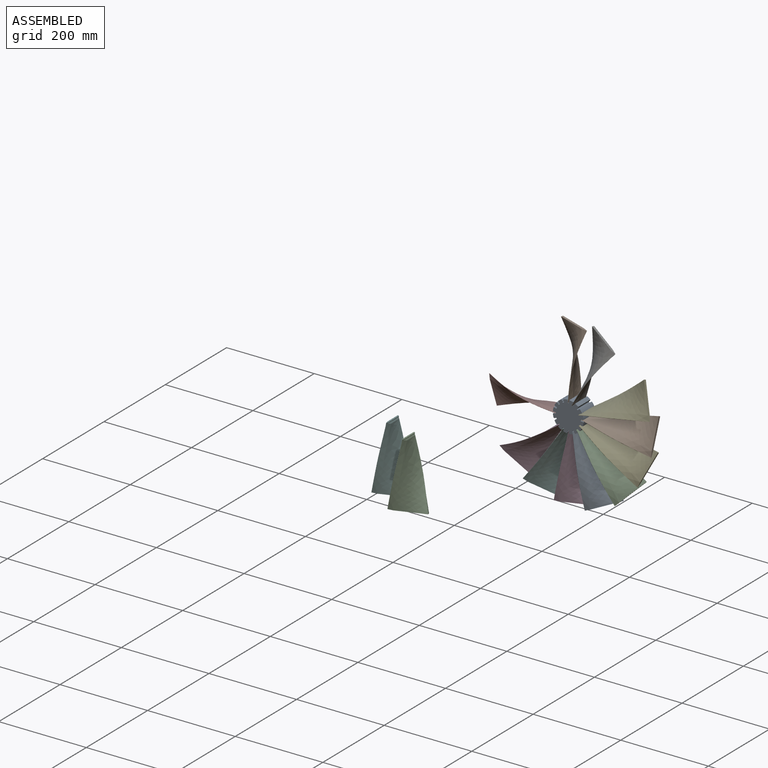
[diagram: assembled view]
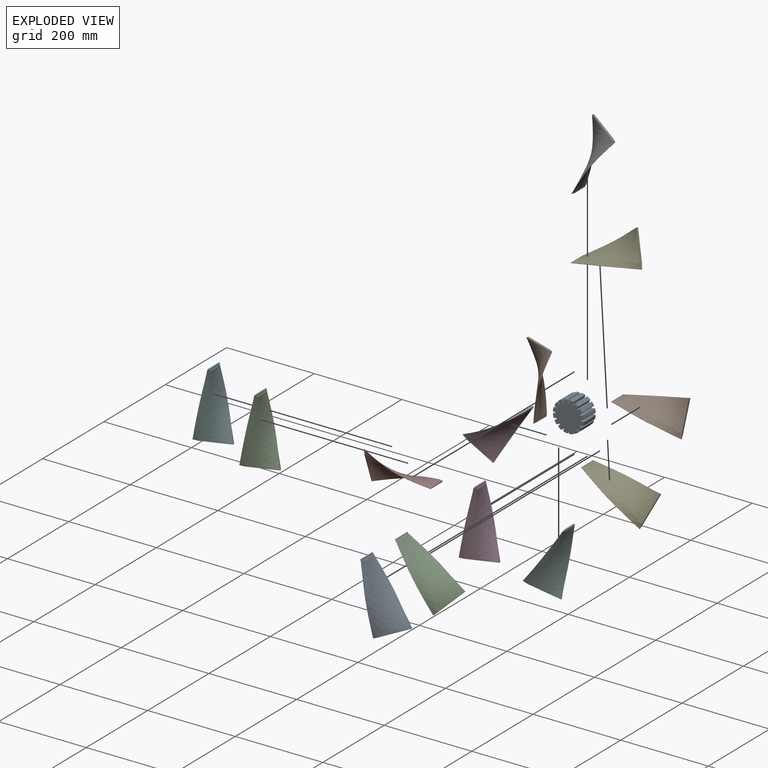
[diagram: exploded view]
GUIDED TOUR — MATED ASSEMBLY (Onshape document 3f12e4d53c6de2eebe91c551, AutoMate assembly 3f12e4d53c6de2eebe91c551_c72b980a857b75dac91aec3a_a3defe0d65092059f7c9bf6e_default)

This assembly has 14 components, labeled P0..P13 below (a component is one placed occurrence of a part; the same part can appear more than once), held together by 11 mates. A mate is a constraint between two components; its type names the relative motion it leaves free:
  FASTENED — locks the two components together rigidly (no relative motion).
Axis/direction vectors are unit vectors and 'through' points are millimeter coordinates, both in the assembly's world frame.

MATES
  1. FASTENED "Fastened 7": P6 <-> P0, direction (-0.999, 0.000, 0.044) through (10.98, 20.00, 31.40) mm
  2. FASTENED "Fastened 10": P4 <-> P0, direction (0.057, 0.000, -0.998) through (31.39, 20.00, 10.94) mm
  3. FASTENED "Fastened 8": P9 <-> P0, direction (0.000, -1.000, 0.000) through (0.00, 0.00, 30.12) mm
  4. FASTENED "Fastened 4": P11 <-> P0, direction (0.901, 0.000, -0.435) through (-22.10, 20.00, -24.83) mm
  5. FASTENED "Fastened 12": P7 <-> P0, direction (0.000, -1.000, 0.000) through (-30.13, 0.00, -0.05) mm
  6. FASTENED "Fastened 6": P12 <-> P0, direction (0.044, 0.000, 0.999) through (31.40, 20.00, -10.98) mm
  7. FASTENED "Fastened 9": P3 <-> P0, direction (0.000, -1.000, 0.000) through (0.00, 0.00, -30.12) mm
  8. FASTENED "Fastened 1": P8 <-> P0, direction (0.737, 0.000, 0.676) through (14.44, 20.00, -29.96) mm
  9. FASTENED "Fastened 3": P5 <-> P0, direction (0.999, 0.000, -0.044) through (-10.98, 20.00, -31.40) mm
  10. FASTENED "Fastened 2": P1 <-> P0, direction (0.000, -1.000, 0.000) through (30.13, 0.00, -0.05) mm
  11. FASTENED "Fastened 5": P2 <-> P0, direction (0.423, 0.000, 0.906) through (25.03, 20.00, -22.26) mm

ASSEMBLY ORDER
  1. P0 — the base component [order verified]
  2. P12 [order verified]
  3. P8 [order verified]
  4. P2 [order verified]
  5. P11 [order verified]
  6. P5 [order verified]
  7. P6 [order verified]
  8. P9 [order verified]
  9. P7 [order verified]
  10. P3 [order verified]
  11. P1 [order verified]
  12. P4 [order verified]
  13. P10 [order verified]
  14. P13 [order verified]
Order-tag legend:
  [order verified] — this step's position reverses a verified removal order: the component was checked to insert without passing through the ones already placed.

Of the 14 components, 1 carries the full construction recipe — the FeatureScript program that regenerates the part's solid from scratch; the rest are supplied as boundary geometry only.
Because this assembly has more than 12 components, the tour below covers the 12 most significant ones individually (every recipe-attached component first, then the largest by part volume), in assembly order; the remaining 2 are summarized together in a grouped section at the end.
Each toured component is shown spotlighted twice — in the assembled view, then in the exploded view, where a leader line traces a displaced component back to its assembled socket (saturated green if recipe-attached, orange if geometry-only; every other component desaturated gray) — followed by its recipe or geometry summary and the mates that hold it.
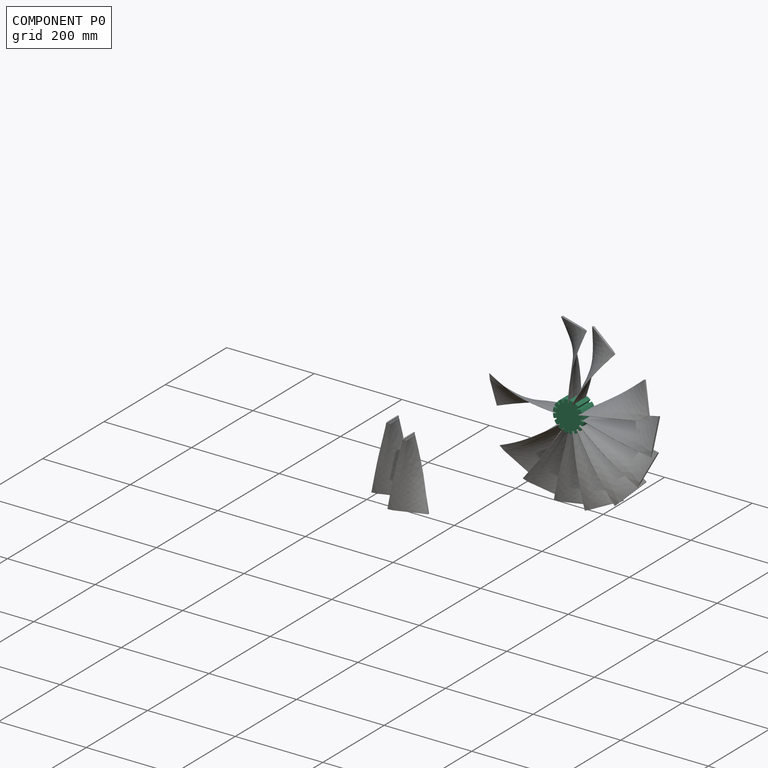
[diagram: component P0 — assembled]
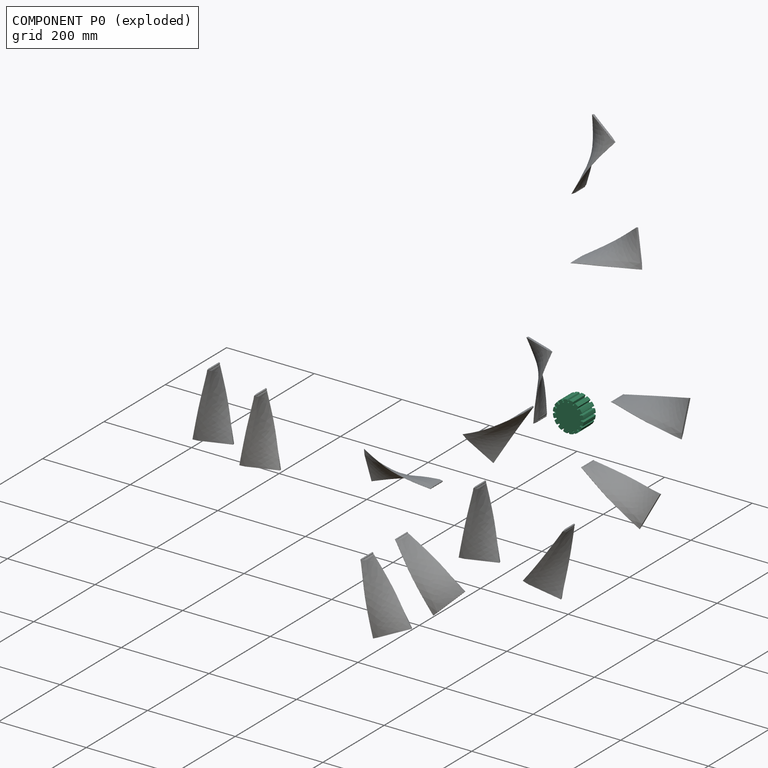
[diagram: component P0 — exploded]
COMPONENT P0 — recipe-attached (CADFS 00645231, mesh-verified: the recipe's output STEP matches this component's geometry to below the mesh-comparison resolution (tessellation chordal tolerance ~0.16 mm)).
Held by: FASTENED mate "Fastened 7" to P6; FASTENED mate "Fastened 10" to P4; FASTENED mate "Fastened 8" to P9; FASTENED mate "Fastened 4" to P11; FASTENED mate "Fastened 12" to P7; FASTENED mate "Fastened 6" to P12; FASTENED mate "Fastened 9" to P3; FASTENED mate "Fastened 1" to P8; FASTENED mate "Fastened 3" to P5; FASTENED mate "Fastened 2" to P1; FASTENED mate "Fastened 5" to P2.
Construction recipe (FeatureScript — the CAD program that rebuilds this solid; sketch coordinates are in the units given by the * unit suffixes, e.g. mm):

FeatureScript 1511;
import(path : "onshape/std/geometry.fs", version : "1511.0");
import(path : "onshape/std/common.fs", version : "1511.0");
const mm = millimeter;
const VERTEX = EntityType.VERTEX;
const EDGE = EntityType.EDGE;
const FACE = EntityType.FACE;
const BODY = EntityType.BODY;
function v(x, y){return vector(x, y);}
function OD(order){return orderDisambiguation(order);}
function OSD(set){return originalSetDisambiguation(set);}
function TD(topology){return topologyDisambiguation(topology);}
function TDD(query){return trueDependencyDisambiguation(query);}
function sQuery(a, b, c) {return sketchEntityQuery(a, b, c);}

annotation { "Feature Type Name" : "Feature", "Feature Type Description" : "" }
export const myFeature = defineFeature(function(context is Context, id is Id, definition is map)
    precondition{}
    {
        {
            var Q0;
            Q0=qCreatedBy(makeId("Front.planeOp"),FACE);
            var sketch = newSketch(context, id + "F0", { "sketchPlane" : qUnion([Q0])});
            skCircle(sketch, "E0", {"center": v(0, 0) * mm, "radius": 35 * mm});
            skLineSegment(sketch, "E1", {"start": v(0, -35) * mm, "end": v(0, 35) * mm, "construction": true});
            skLineSegment(sketch, "E2", {"start": v(35, 0) * mm, "end": v(-35, 0) * mm, "construction": true});
            skLineSegment(sketch, "E3", {"start": v(-24.75, -24.75) * mm, "end": v(24.75, 24.75) * mm, "construction": true});
            skLineSegment(sketch, "E4", {"start": v(-24.75, 24.75) * mm, "end": v(24.75, -24.75) * mm, "construction": true});
            skLineSegment(sketch, "E5.0", {"start": v(-2.5, 34.91) * mm, "end": v(2.5, 34.91) * mm});
            skLineSegment(sketch, "E6", {"start": v(-2.5, 34.91) * mm, "end": v(-1.26, 31.5) * mm});
            skLineSegment(sketch, "E7", {"start": v(2.5, 34.91) * mm, "end": v(1.3, 31.46) * mm});
            skLineSegment(sketch, "E8", {"start": v(-0.78, 30.21) * mm, "end": v(0.87, 30.21) * mm, "construction": true});
            skArc(sketch, "E9", {"start": v(-1.26, 31.5) * mm, "mid": v(-0.03, 28.25) * mm, "end": v(1.3, 31.46) * mm});
            skLineSegment(sketch, "E10", {"start": v(23.09, 26.3) * mm, "end": v(21.4, 23.13) * mm});
            skLineSegment(sketch, "E11", {"start": v(26.42, 22.96) * mm, "end": v(23.13, 21.37) * mm});
            skLineSegment(sketch, "E12", {"start": v(20.77, 21.96) * mm, "end": v(21.94, 20.8) * mm, "construction": true});
            skArc(sketch, "E13", {"start": v(21.4, 23.13) * mm, "mid": v(20, 20.02) * mm, "end": v(23.13, 21.37) * mm});
            skLineSegment(sketch, "E14", {"start": v(34.91, 2.44) * mm, "end": v(31.51, 1.2) * mm});
            skLineSegment(sketch, "E15", {"start": v(34.9, -2.55) * mm, "end": v(31.47, -1.35) * mm});
            skLineSegment(sketch, "E16", {"start": v(30.22, 0.73) * mm, "end": v(30.22, -0.92) * mm, "construction": true});
            skArc(sketch, "E17", {"start": v(31.51, 1.2) * mm, "mid": v(28.26, -0.02) * mm, "end": v(31.47, -1.35) * mm});
            skLineSegment(sketch, "E18", {"start": v(2.5, -34.91) * mm, "end": v(1.26, -31.5) * mm});
            skLineSegment(sketch, "E19", {"start": v(-2.5, -34.91) * mm, "end": v(-1.3, -31.46) * mm});
            skLineSegment(sketch, "E20", {"start": v(0.78, -30.21) * mm, "end": v(-0.87, -30.21) * mm, "construction": true});
            skArc(sketch, "E21", {"start": v(1.26, -31.5) * mm, "mid": v(0.03, -28.26) * mm, "end": v(-1.3, -31.46) * mm});
            skLineSegment(sketch, "E22", {"start": v(26.43, -22.94) * mm, "end": v(23.18, -21.4) * mm});
            skLineSegment(sketch, "E23", {"start": v(22.9, -26.48) * mm, "end": v(21.3, -23.19) * mm});
            skArc(sketch, "E24", {"start": v(23.18, -21.4) * mm, "mid": v(20, -19.94) * mm, "end": v(21.3, -23.19) * mm});
            skLineSegment(sketch, "E25.MirrorCS", {"start": v(-34.9, -2.55) * mm, "end": v(-31.47, -1.35) * mm});
            skArc(sketch, "E26.MirrorCS", {"start": v(-31.51, 1.2) * mm, "mid": v(-28.26, -0.02) * mm, "end": v(-31.47, -1.35) * mm});
            skLineSegment(sketch, "E27.MirrorCS", {"start": v(-34.91, 2.44) * mm, "end": v(-31.51, 1.2) * mm});
            skLineSegment(sketch, "E28.MirrorCS", {"start": v(-26.42, 22.96) * mm, "end": v(-23.13, 21.37) * mm});
            skArc(sketch, "E29.MirrorCS", {"start": v(-21.4, 23.13) * mm, "mid": v(-20, 20.02) * mm, "end": v(-23.13, 21.37) * mm});
            skLineSegment(sketch, "E30.MirrorCS", {"start": v(-23.09, 26.3) * mm, "end": v(-21.4, 23.13) * mm});
            skArc(sketch, "E31.MirrorCS", {"start": v(-23.18, -21.4) * mm, "mid": v(-20, -19.94) * mm, "end": v(-21.3, -23.19) * mm});
            skLineSegment(sketch, "E32.MirrorCS", {"start": v(-26.43, -22.94) * mm, "end": v(-23.18, -21.4) * mm});
            skLineSegment(sketch, "E33.MirrorCS", {"start": v(-22.9, -26.48) * mm, "end": v(-21.3, -23.19) * mm});
            skLineSegment(sketch, "E34.1.1", {"start": v(13.4, -32.34) * mm, "end": v(-13.4, 32.34) * mm, "construction": true});
            skLineSegment(sketch, "E34.1.2", {"start": v(-11.04, 33.21) * mm, "end": v(-10.84, 29.57) * mm});
            skArc(sketch, "E34.1.3", {"start": v(-13.22, 28.63) * mm, "mid": v(-10.84, 26.1) * mm, "end": v(-10.84, 29.57) * mm});
            skLineSegment(sketch, "E34.1.4", {"start": v(-15.66, 31.3) * mm, "end": v(-11.04, 33.21) * mm});
            skLineSegment(sketch, "E34.1.5", {"start": v(-15.66, 31.3) * mm, "end": v(-13.22, 28.63) * mm});
            skLineSegment(sketch, "E34.1.6", {"start": v(-12.29, 27.61) * mm, "end": v(-10.76, 28.24) * mm, "construction": true});
            skLineSegment(sketch, "E34.2.1", {"start": v(24.75, -24.75) * mm, "end": v(-24.75, 24.75) * mm, "construction": true});
            skLineSegment(sketch, "E34.2.2", {"start": v(-22.91, 26.46) * mm, "end": v(-21.33, 23.17) * mm});
            skArc(sketch, "E34.2.3", {"start": v(-23.17, 21.4) * mm, "mid": v(-20, 19.96) * mm, "end": v(-21.33, 23.17) * mm});
            skLineSegment(sketch, "E34.2.4", {"start": v(-26.45, 22.92) * mm, "end": v(-22.91, 26.46) * mm});
            skLineSegment(sketch, "E34.2.5", {"start": v(-26.45, 22.92) * mm, "end": v(-23.17, 21.4) * mm});
            skLineSegment(sketch, "E34.2.6", {"start": v(-21.92, 20.8) * mm, "end": v(-20.75, 21.98) * mm, "construction": true});
            skLineSegment(sketch, "E35.2.3.0", {"start": v(32.34, -13.4) * mm, "end": v(-32.34, 13.4) * mm, "construction": true});
            skLineSegment(sketch, "E35.5.3.0", {"start": v(-31.3, 15.68) * mm, "end": v(-28.57, 13.24) * mm});
            skArc(sketch, "E35.8.3.0", {"start": v(-29.59, 10.9) * mm, "mid": v(-26.12, 10.78) * mm, "end": v(-28.57, 13.24) * mm});
            skLineSegment(sketch, "E35.12.3.0", {"start": v(-33.2, 11.06) * mm, "end": v(-31.3, 15.68) * mm});
            skLineSegment(sketch, "E35.15.3.0", {"start": v(-33.2, 11.06) * mm, "end": v(-29.59, 10.9) * mm});
            skLineSegment(sketch, "E35.18.3.0", {"start": v(-28.21, 10.84) * mm, "end": v(-27.58, 12.36) * mm, "construction": true});
            skLineSegment(sketch, "E35.5.4.0", {"start": v(-34.91, 2.5) * mm, "end": v(-31.46, 1.3) * mm});
            skArc(sketch, "E35.8.4.0", {"start": v(-31.5, -1.26) * mm, "mid": v(-28.25, -0.03) * mm, "end": v(-31.46, 1.3) * mm});
            skLineSegment(sketch, "E35.12.4.0", {"start": v(-34.91, -2.5) * mm, "end": v(-34.91, 2.5) * mm});
            skLineSegment(sketch, "E35.15.4.0", {"start": v(-34.91, -2.5) * mm, "end": v(-31.5, -1.26) * mm});
            skLineSegment(sketch, "E35.18.4.0", {"start": v(-30.21, -0.78) * mm, "end": v(-30.21, 0.87) * mm, "construction": true});
            skLineSegment(sketch, "E35.2.5.0", {"start": v(32.34, 13.4) * mm, "end": v(-32.34, -13.4) * mm, "construction": true});
            skLineSegment(sketch, "E35.5.5.0", {"start": v(-33.21, -11.04) * mm, "end": v(-29.57, -10.84) * mm});
            skArc(sketch, "E35.8.5.0", {"start": v(-28.63, -13.22) * mm, "mid": v(-26.1, -10.84) * mm, "end": v(-29.57, -10.84) * mm});
            skLineSegment(sketch, "E35.12.5.0", {"start": v(-31.3, -15.66) * mm, "end": v(-33.21, -11.04) * mm});
            skLineSegment(sketch, "E35.15.5.0", {"start": v(-31.3, -15.66) * mm, "end": v(-28.63, -13.22) * mm});
            skLineSegment(sketch, "E35.18.5.0", {"start": v(-27.61, -12.29) * mm, "end": v(-28.24, -10.76) * mm, "construction": true});
            skLineSegment(sketch, "E35.2.6.0", {"start": v(24.75, 24.75) * mm, "end": v(-24.75, -24.75) * mm, "construction": true});
            skLineSegment(sketch, "E35.5.6.0", {"start": v(-26.46, -22.91) * mm, "end": v(-23.17, -21.33) * mm});
            skArc(sketch, "E35.8.6.0", {"start": v(-21.4, -23.17) * mm, "mid": v(-19.96, -20) * mm, "end": v(-23.17, -21.33) * mm});
            skLineSegment(sketch, "E35.12.6.0", {"start": v(-22.92, -26.45) * mm, "end": v(-26.46, -22.91) * mm});
            skLineSegment(sketch, "E35.15.6.0", {"start": v(-22.92, -26.45) * mm, "end": v(-21.4, -23.17) * mm});
            skLineSegment(sketch, "E35.18.6.0", {"start": v(-20.8, -21.92) * mm, "end": v(-21.98, -20.75) * mm, "construction": true});
            skLineSegment(sketch, "E35.2.7.0", {"start": v(13.4, 32.34) * mm, "end": v(-13.4, -32.34) * mm, "construction": true});
            skLineSegment(sketch, "E35.5.7.0", {"start": v(-15.68, -31.3) * mm, "end": v(-13.24, -28.57) * mm});
            skArc(sketch, "E35.8.7.0", {"start": v(-10.9, -29.59) * mm, "mid": v(-10.78, -26.12) * mm, "end": v(-13.24, -28.57) * mm});
            skLineSegment(sketch, "E35.12.7.0", {"start": v(-11.06, -33.2) * mm, "end": v(-15.68, -31.3) * mm});
            skLineSegment(sketch, "E35.15.7.0", {"start": v(-11.06, -33.2) * mm, "end": v(-10.9, -29.59) * mm});
            skLineSegment(sketch, "E35.18.7.0", {"start": v(-10.84, -28.21) * mm, "end": v(-12.36, -27.58) * mm, "construction": true});
            skLineSegment(sketch, "E36.2.8.0", {"start": v(0, 35) * mm, "end": v(0, -35) * mm, "construction": true});
            skArc(sketch, "E36.8.8.0", {"start": v(1.26, -31.5) * mm, "mid": v(0.03, -28.25) * mm, "end": v(-1.3, -31.46) * mm});
            skLineSegment(sketch, "E36.12.8.0", {"start": v(2.5, -34.91) * mm, "end": v(-2.5, -34.91) * mm});
            skLineSegment(sketch, "E36.2.9.0", {"start": v(-13.4, 32.34) * mm, "end": v(13.4, -32.34) * mm, "construction": true});
            skLineSegment(sketch, "E36.5.9.0", {"start": v(11.04, -33.21) * mm, "end": v(10.84, -29.57) * mm});
            skArc(sketch, "E36.8.9.0", {"start": v(13.22, -28.63) * mm, "mid": v(10.84, -26.1) * mm, "end": v(10.84, -29.57) * mm});
            skLineSegment(sketch, "E36.12.9.0", {"start": v(15.66, -31.3) * mm, "end": v(11.04, -33.21) * mm});
            skLineSegment(sketch, "E36.15.9.0", {"start": v(15.66, -31.3) * mm, "end": v(13.22, -28.63) * mm});
            skLineSegment(sketch, "E36.18.9.0", {"start": v(12.29, -27.61) * mm, "end": v(10.76, -28.24) * mm, "construction": true});
            skLineSegment(sketch, "E36.5.10.0", {"start": v(22.91, -26.46) * mm, "end": v(21.33, -23.17) * mm});
            skArc(sketch, "E36.8.10.0", {"start": v(23.17, -21.4) * mm, "mid": v(20, -19.96) * mm, "end": v(21.33, -23.17) * mm});
            skLineSegment(sketch, "E36.12.10.0", {"start": v(26.45, -22.92) * mm, "end": v(22.91, -26.46) * mm});
            skLineSegment(sketch, "E36.15.10.0", {"start": v(26.45, -22.92) * mm, "end": v(23.17, -21.4) * mm});
            skLineSegment(sketch, "E36.18.10.0", {"start": v(21.92, -20.8) * mm, "end": v(20.75, -21.98) * mm, "construction": true});
            skLineSegment(sketch, "E36.2.11.0", {"start": v(-32.34, 13.4) * mm, "end": v(32.34, -13.4) * mm, "construction": true});
            skLineSegment(sketch, "E36.5.11.0", {"start": v(31.3, -15.68) * mm, "end": v(28.57, -13.24) * mm});
            skArc(sketch, "E36.8.11.0", {"start": v(29.59, -10.9) * mm, "mid": v(26.12, -10.78) * mm, "end": v(28.57, -13.24) * mm});
            skLineSegment(sketch, "E36.12.11.0", {"start": v(33.2, -11.06) * mm, "end": v(31.3, -15.68) * mm});
            skLineSegment(sketch, "E36.15.11.0", {"start": v(33.2, -11.06) * mm, "end": v(29.59, -10.9) * mm});
            skLineSegment(sketch, "E36.18.11.0", {"start": v(28.21, -10.84) * mm, "end": v(27.58, -12.36) * mm, "construction": true});
            skLineSegment(sketch, "E37.2.12.0", {"start": v(-35, 0) * mm, "end": v(35, 0) * mm, "construction": true});
            skLineSegment(sketch, "E37.5.12.0", {"start": v(34.91, -2.5) * mm, "end": v(31.46, -1.3) * mm});
            skArc(sketch, "E37.8.12.0", {"start": v(31.5, 1.26) * mm, "mid": v(28.25, 0.03) * mm, "end": v(31.46, -1.3) * mm});
            skLineSegment(sketch, "E37.12.12.0", {"start": v(34.91, 2.5) * mm, "end": v(34.91, -2.5) * mm});
            skLineSegment(sketch, "E37.15.12.0", {"start": v(34.91, 2.5) * mm, "end": v(31.5, 1.26) * mm});
            skLineSegment(sketch, "E37.18.12.0", {"start": v(30.21, 0.78) * mm, "end": v(30.21, -0.87) * mm, "construction": true});
            skLineSegment(sketch, "E37.2.13.0", {"start": v(-32.34, -13.4) * mm, "end": v(32.34, 13.4) * mm, "construction": true});
            skLineSegment(sketch, "E37.5.13.0", {"start": v(33.21, 11.04) * mm, "end": v(29.57, 10.84) * mm});
            skArc(sketch, "E37.8.13.0", {"start": v(28.63, 13.22) * mm, "mid": v(26.1, 10.84) * mm, "end": v(29.57, 10.84) * mm});
            skLineSegment(sketch, "E37.12.13.0", {"start": v(31.3, 15.66) * mm, "end": v(33.21, 11.04) * mm});
            skLineSegment(sketch, "E37.15.13.0", {"start": v(31.3, 15.66) * mm, "end": v(28.63, 13.22) * mm});
            skLineSegment(sketch, "E37.18.13.0", {"start": v(27.61, 12.29) * mm, "end": v(28.24, 10.76) * mm, "construction": true});
            skLineSegment(sketch, "E38.5.14.0", {"start": v(26.46, 22.91) * mm, "end": v(23.17, 21.33) * mm});
            skArc(sketch, "E38.8.14.0", {"start": v(21.4, 23.17) * mm, "mid": v(19.96, 20) * mm, "end": v(23.17, 21.33) * mm});
            skLineSegment(sketch, "E38.12.14.0", {"start": v(22.92, 26.45) * mm, "end": v(26.46, 22.91) * mm});
            skLineSegment(sketch, "E38.15.14.0", {"start": v(22.92, 26.45) * mm, "end": v(21.4, 23.17) * mm});
            skLineSegment(sketch, "E38.18.14.0", {"start": v(20.8, 21.92) * mm, "end": v(21.98, 20.75) * mm, "construction": true});
            skLineSegment(sketch, "E38.2.15.0", {"start": v(-13.4, -32.34) * mm, "end": v(13.4, 32.34) * mm, "construction": true});
            skLineSegment(sketch, "E38.5.15.0", {"start": v(15.68, 31.3) * mm, "end": v(13.24, 28.57) * mm});
            skArc(sketch, "E38.8.15.0", {"start": v(10.9, 29.59) * mm, "mid": v(10.78, 26.12) * mm, "end": v(13.24, 28.57) * mm});
            skLineSegment(sketch, "E38.12.15.0", {"start": v(11.06, 33.2) * mm, "end": v(15.68, 31.3) * mm});
            skLineSegment(sketch, "E38.15.15.0", {"start": v(11.06, 33.2) * mm, "end": v(10.9, 29.59) * mm});
            skLineSegment(sketch, "E38.18.15.0", {"start": v(10.84, 28.21) * mm, "end": v(12.36, 27.58) * mm, "construction": true});
            skSolve(sketch);
        }
        {
            var Q0;
            {var subQ1=sQuery(id+"F0.wireOp",EDGE,"E7");Q0=makeQuery(id+"F0.imprint","IMPRINT",FACE,{"disambiguationData":[TD([[makeQuery(id+"F0.imprint","IMPRINT",EDGE,{"derivedFrom":subQ1}),1.0]])]});}
            extrude(context, id + "F1", {"entities" : qUnion([Q0]), "endBound" : BoundingType.SYMMETRIC, "depth" : 40 * mm, "offsetDistance" : 25 * mm});
        }
    });
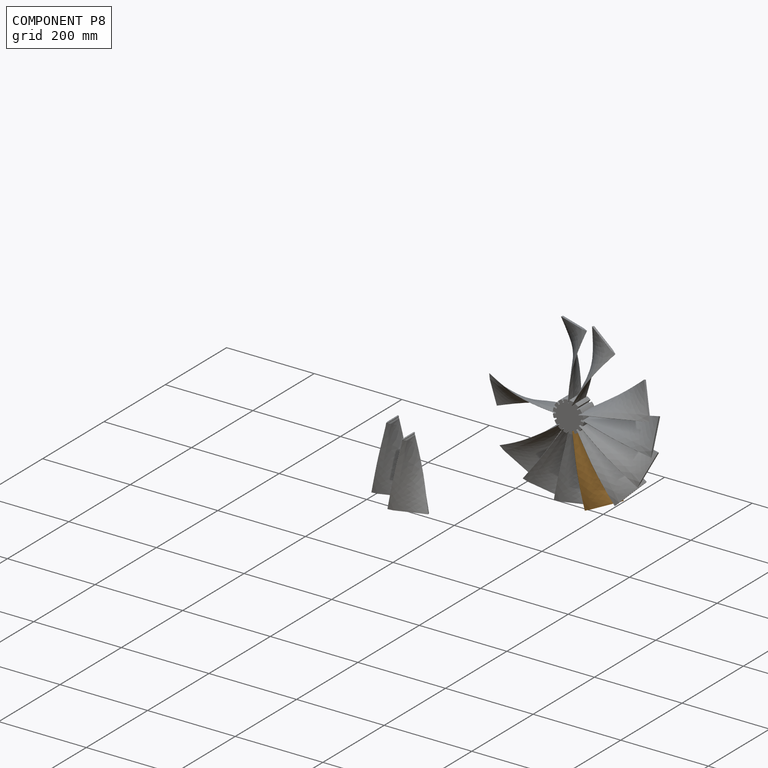
[diagram: component P8 — assembled]
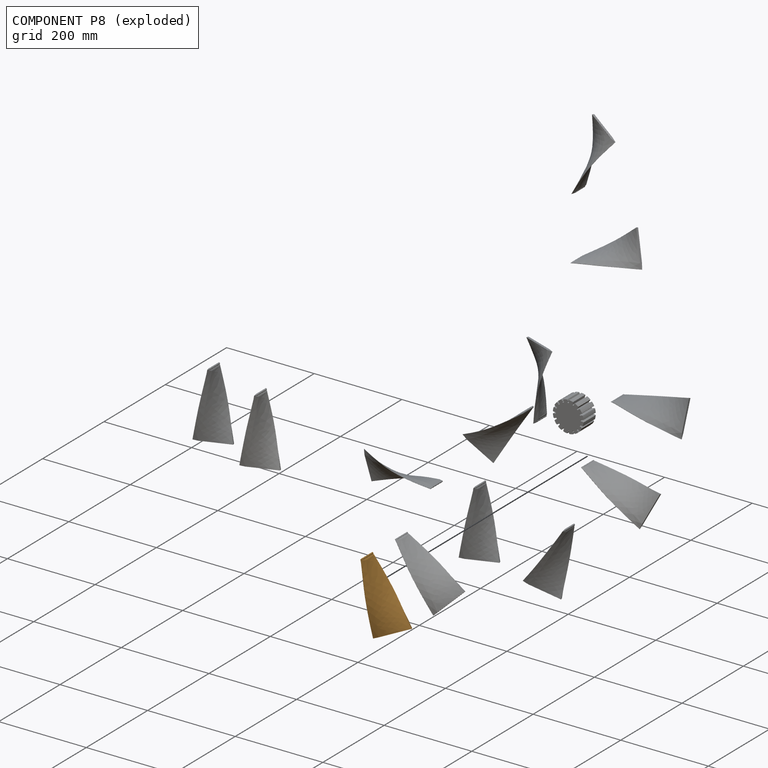
[diagram: component P8 — exploded]
COMPONENT P8 — geometry summary (no construction recipe available for this part):
  bounding box: 170.1 x 79.6 x 63.7 mm
  B-rep topology: 1 solid, 12 faces, 56 edges
  volume: 40781 mm^3 (5% of its bounding box)
Held by: FASTENED mate "Fastened 1" to P0.
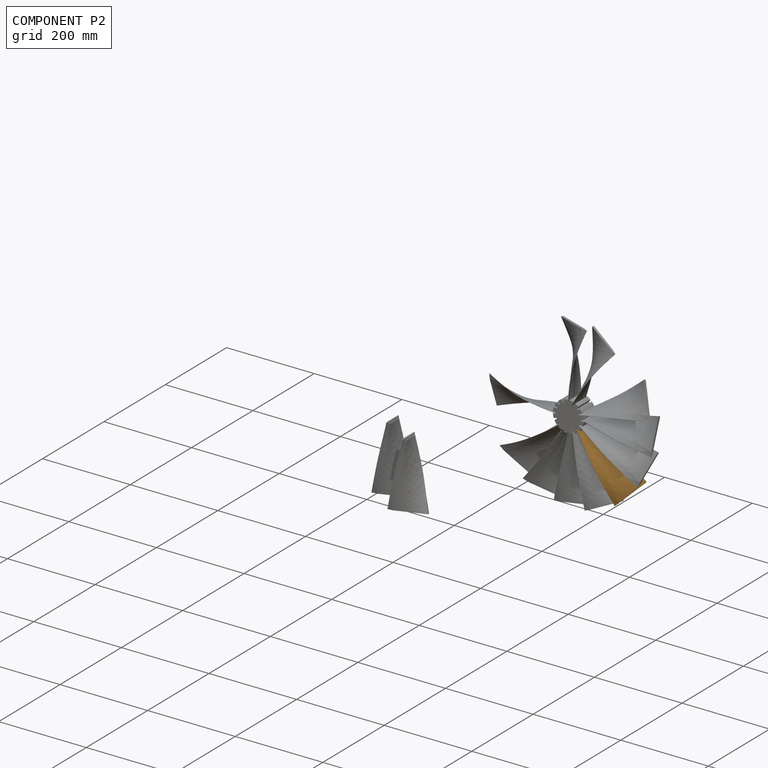
[diagram: component P2 — assembled]
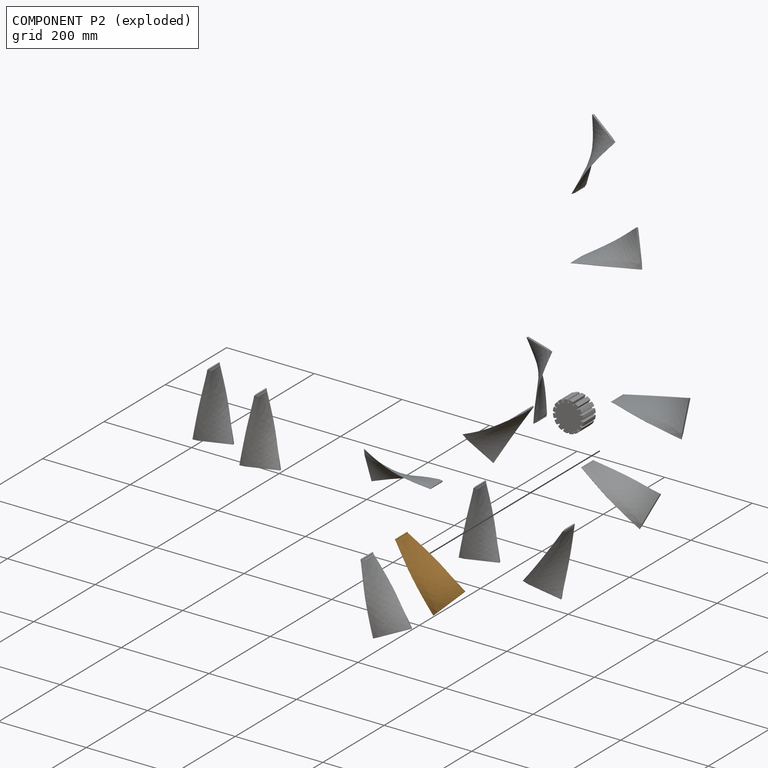
[diagram: component P2 — exploded]
COMPONENT P2 — geometry summary (no construction recipe available for this part):
  bounding box: 170.1 x 79.6 x 63.7 mm
  B-rep topology: 1 solid, 12 faces, 56 edges
  volume: 40781 mm^3 (5% of its bounding box)
Held by: FASTENED mate "Fastened 5" to P0.
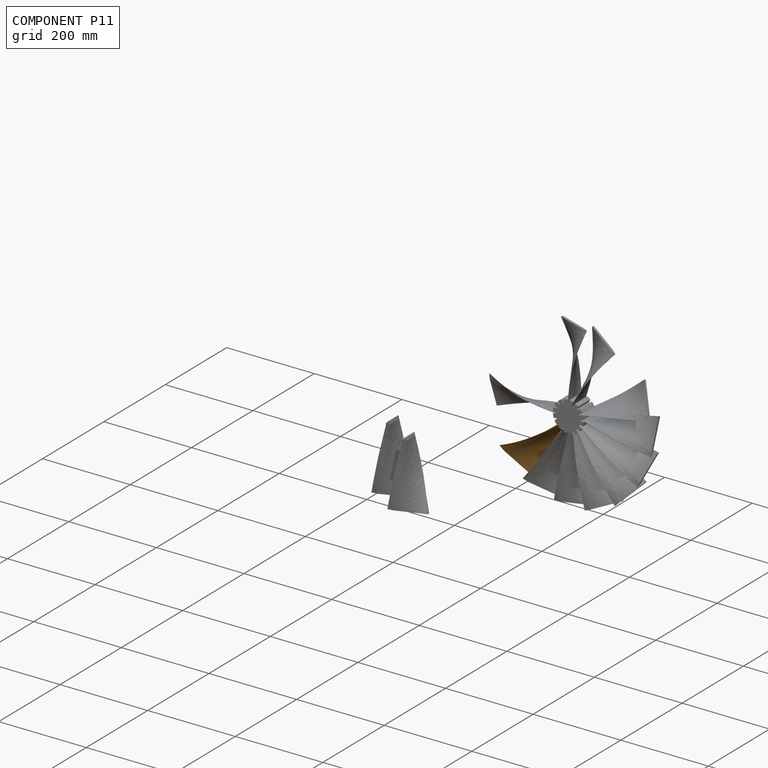
[diagram: component P11 — assembled]
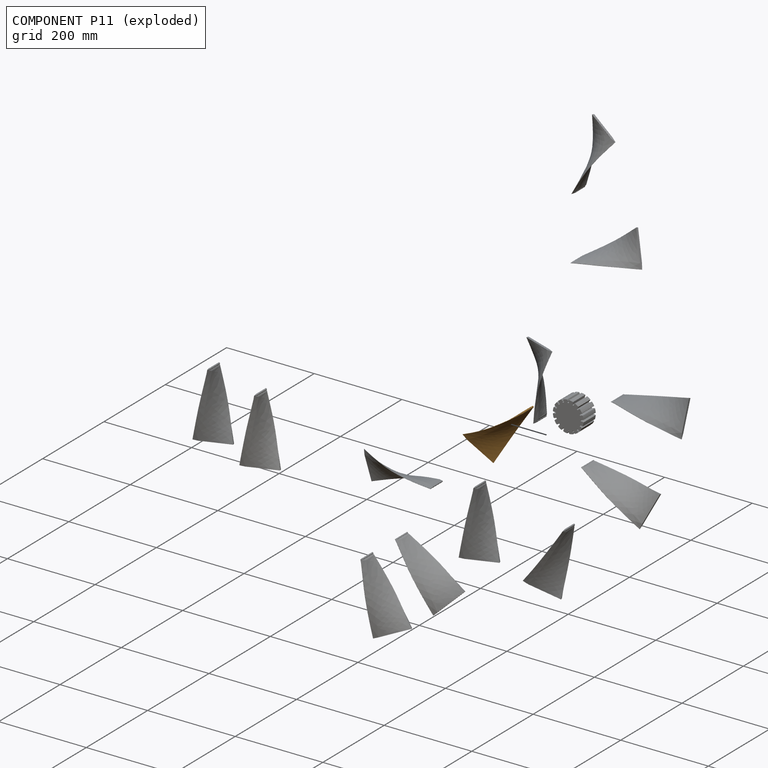
[diagram: component P11 — exploded]
COMPONENT P11 — geometry summary (no construction recipe available for this part):
  bounding box: 170.1 x 79.6 x 63.7 mm
  B-rep topology: 1 solid, 12 faces, 56 edges
  volume: 40781 mm^3 (5% of its bounding box)
Held by: FASTENED mate "Fastened 4" to P0.
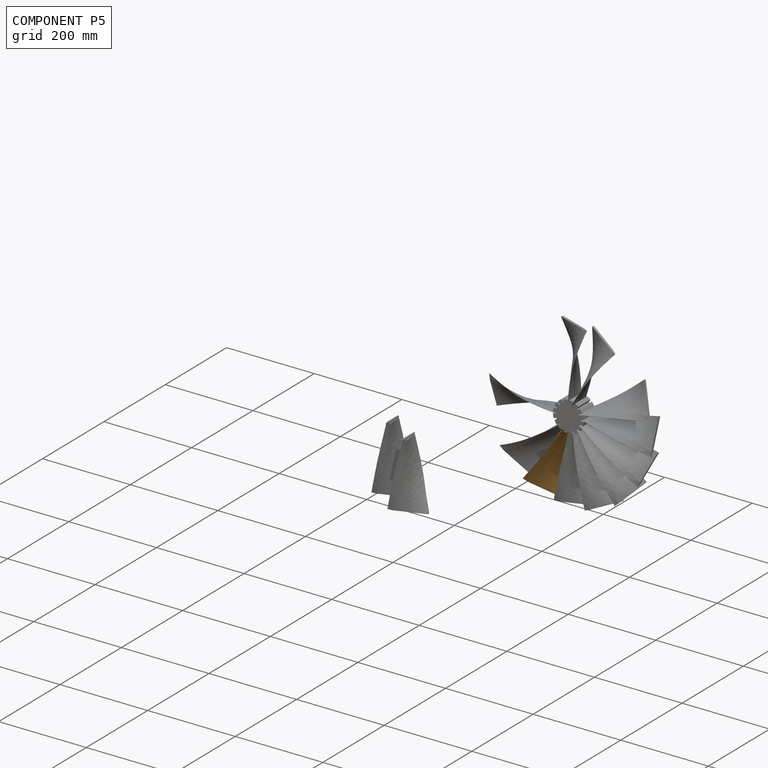
[diagram: component P5 — assembled]
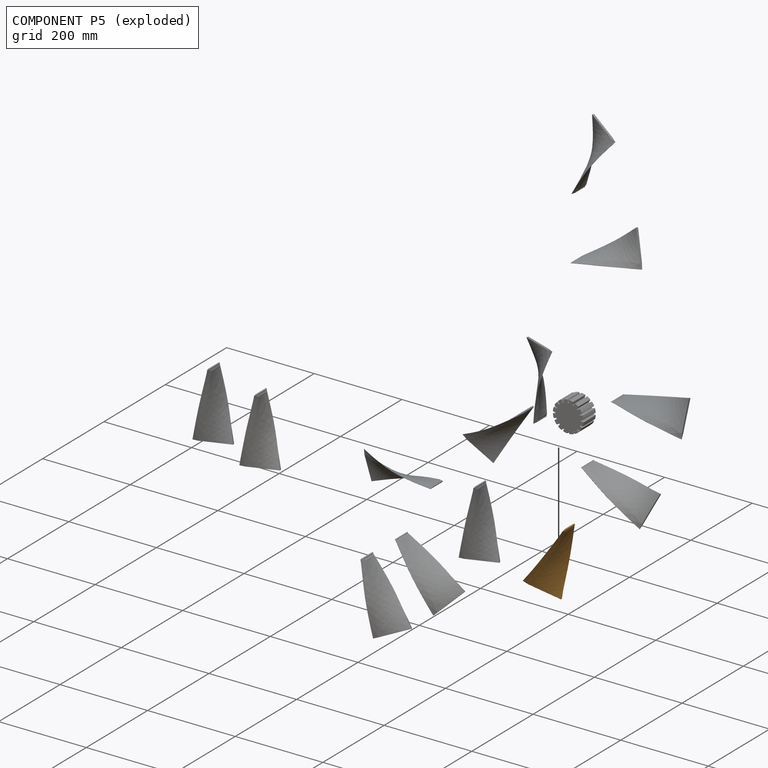
[diagram: component P5 — exploded]
COMPONENT P5 — geometry summary (no construction recipe available for this part):
  bounding box: 170.1 x 79.6 x 63.7 mm
  B-rep topology: 1 solid, 12 faces, 56 edges
  volume: 40781 mm^3 (5% of its bounding box)
Held by: FASTENED mate "Fastened 3" to P0.
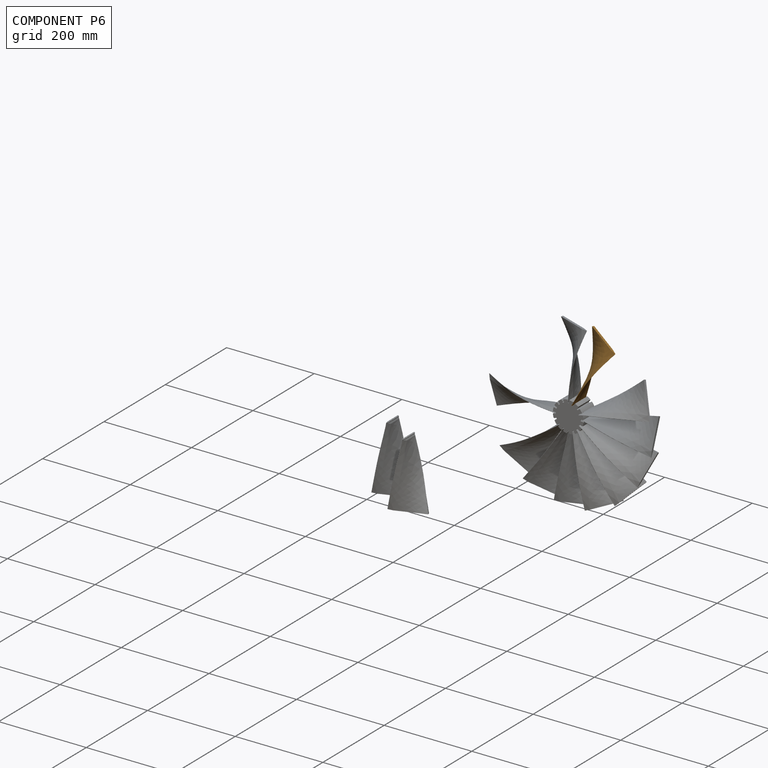
[diagram: component P6 — assembled]
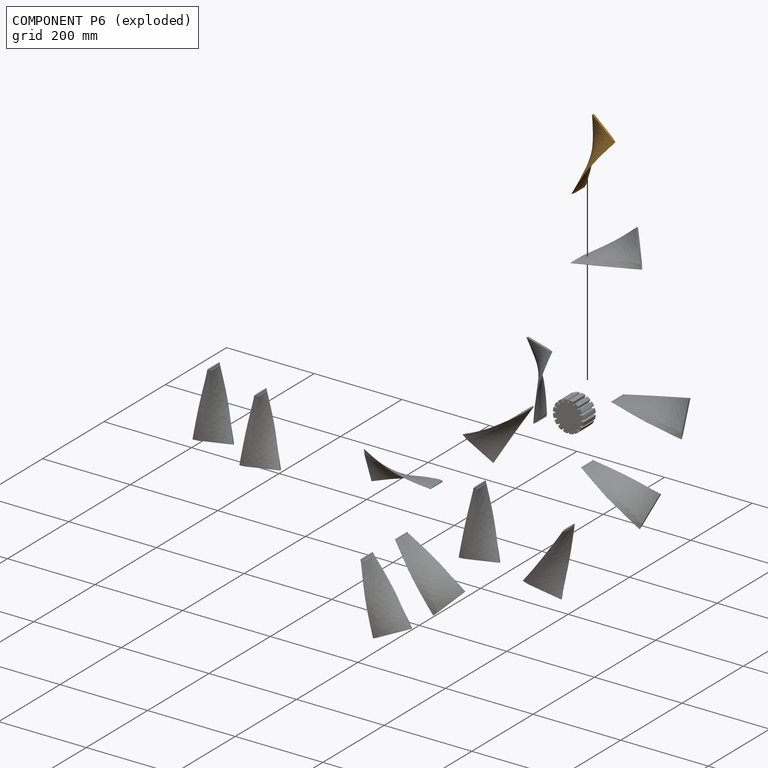
[diagram: component P6 — exploded]
COMPONENT P6 — geometry summary (no construction recipe available for this part):
  bounding box: 170.1 x 79.6 x 63.7 mm
  B-rep topology: 1 solid, 12 faces, 56 edges
  volume: 40781 mm^3 (5% of its bounding box)
Held by: FASTENED mate "Fastened 7" to P0.
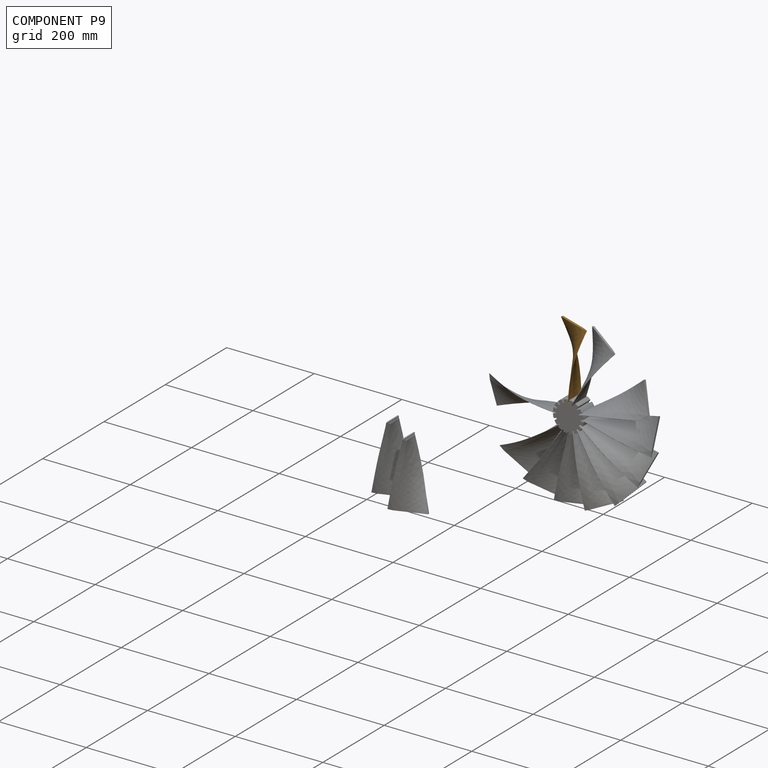
[diagram: component P9 — assembled]
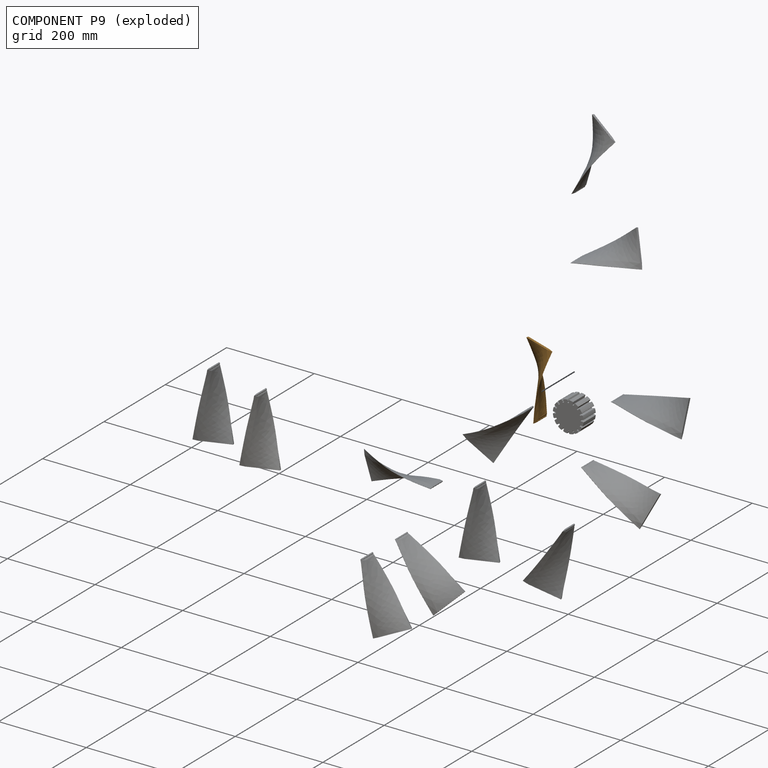
[diagram: component P9 — exploded]
COMPONENT P9 — geometry summary (no construction recipe available for this part):
  bounding box: 170.1 x 79.6 x 63.7 mm
  B-rep topology: 1 solid, 12 faces, 56 edges
  volume: 40781 mm^3 (5% of its bounding box)
Held by: FASTENED mate "Fastened 8" to P0.
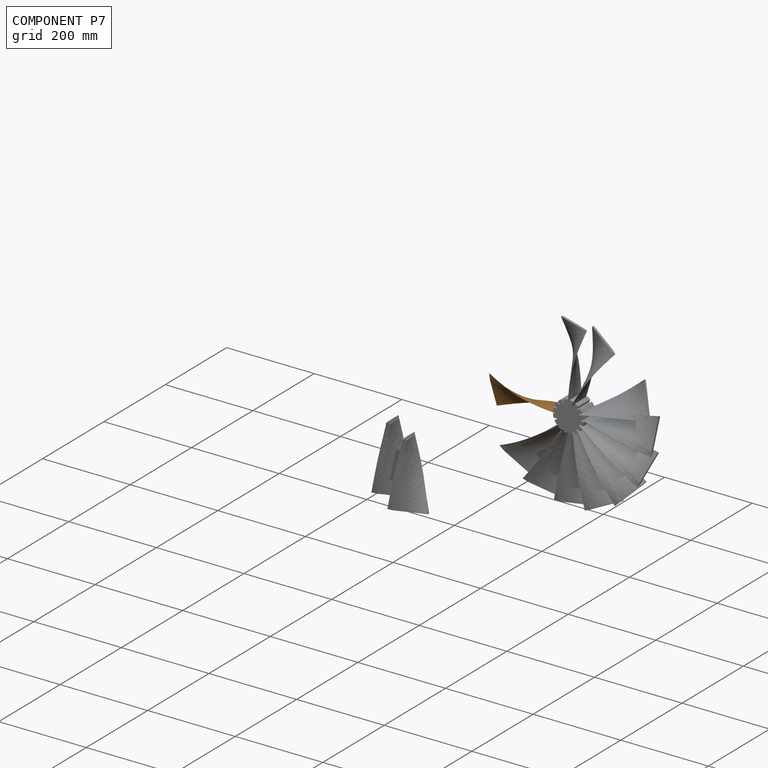
[diagram: component P7 — assembled]
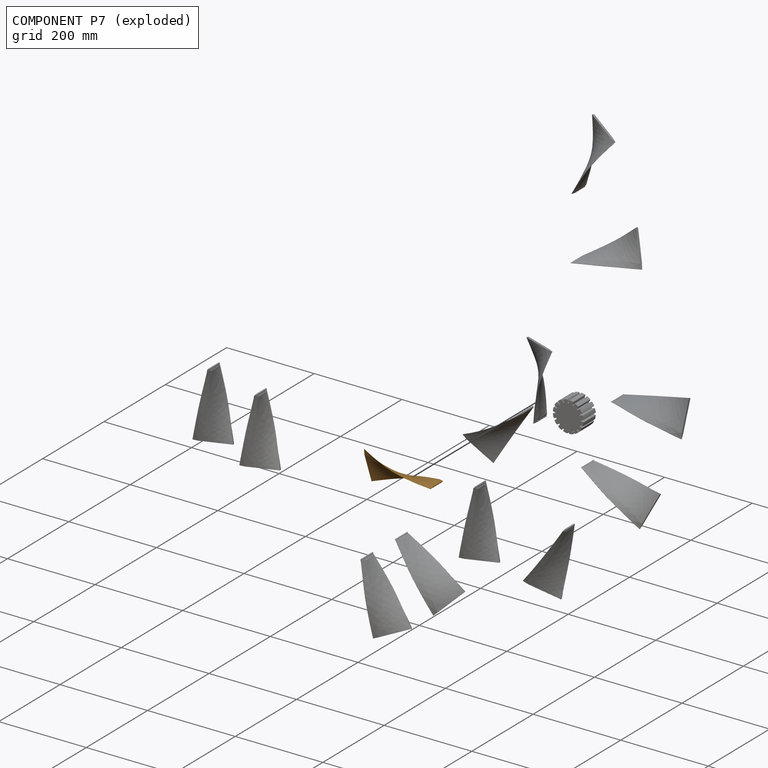
[diagram: component P7 — exploded]
COMPONENT P7 — geometry summary (no construction recipe available for this part):
  bounding box: 170.1 x 79.6 x 63.7 mm
  B-rep topology: 1 solid, 12 faces, 56 edges
  volume: 40781 mm^3 (5% of its bounding box)
Held by: FASTENED mate "Fastened 12" to P0.
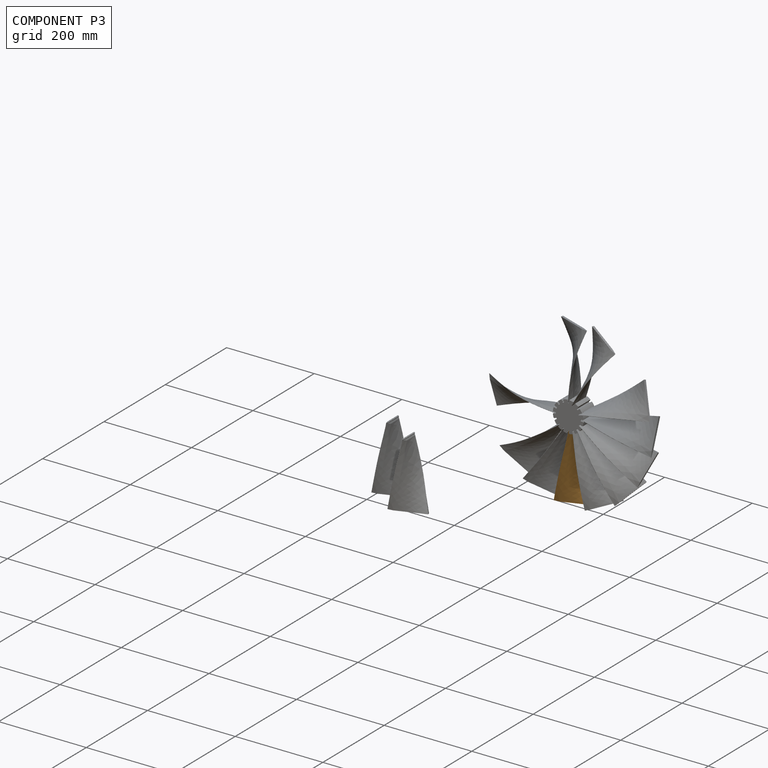
[diagram: component P3 — assembled]
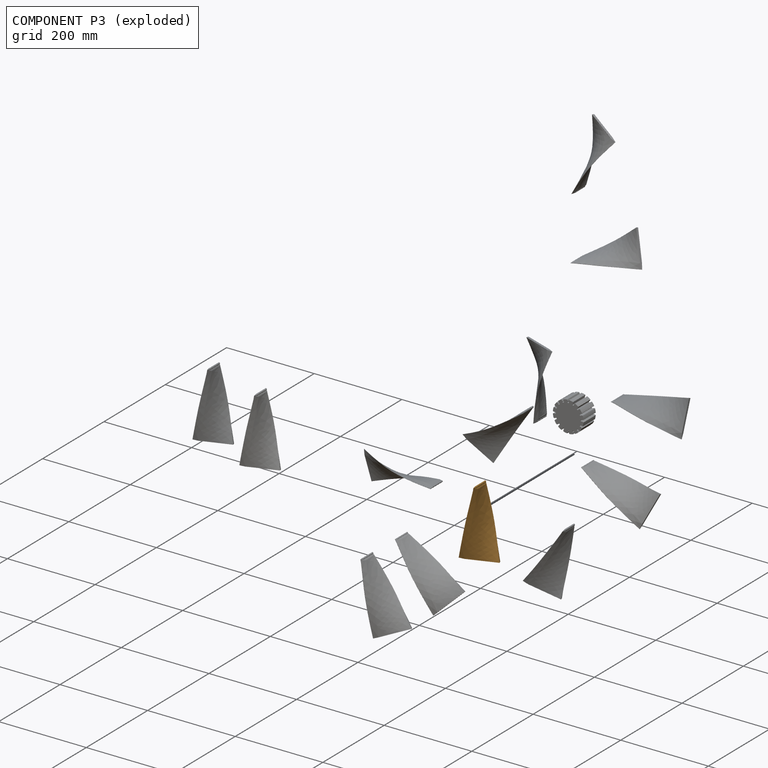
[diagram: component P3 — exploded]
COMPONENT P3 — geometry summary (no construction recipe available for this part):
  bounding box: 170.1 x 79.6 x 63.7 mm
  B-rep topology: 1 solid, 12 faces, 56 edges
  volume: 40781 mm^3 (5% of its bounding box)
Held by: FASTENED mate "Fastened 9" to P0.
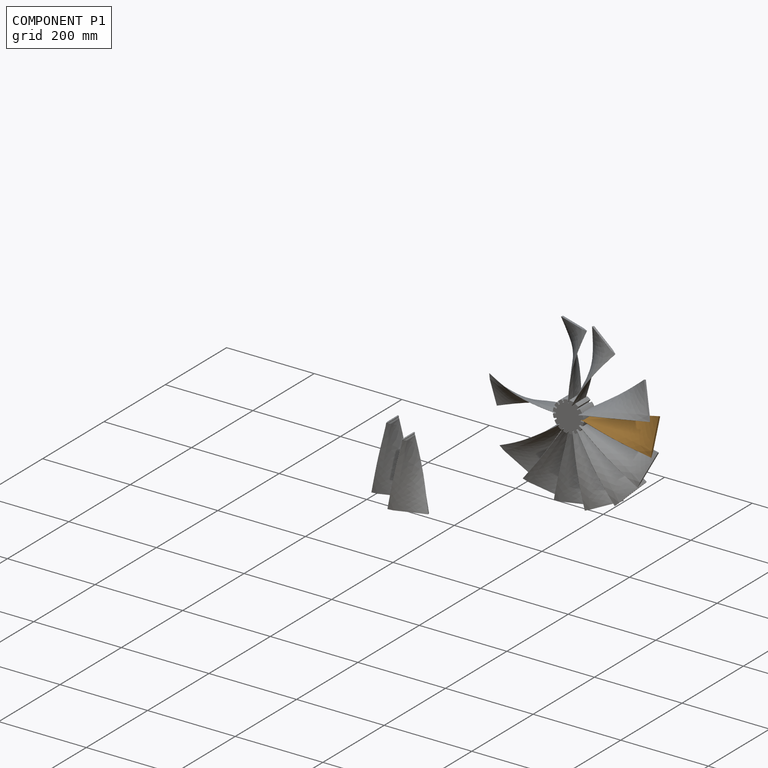
[diagram: component P1 — assembled]
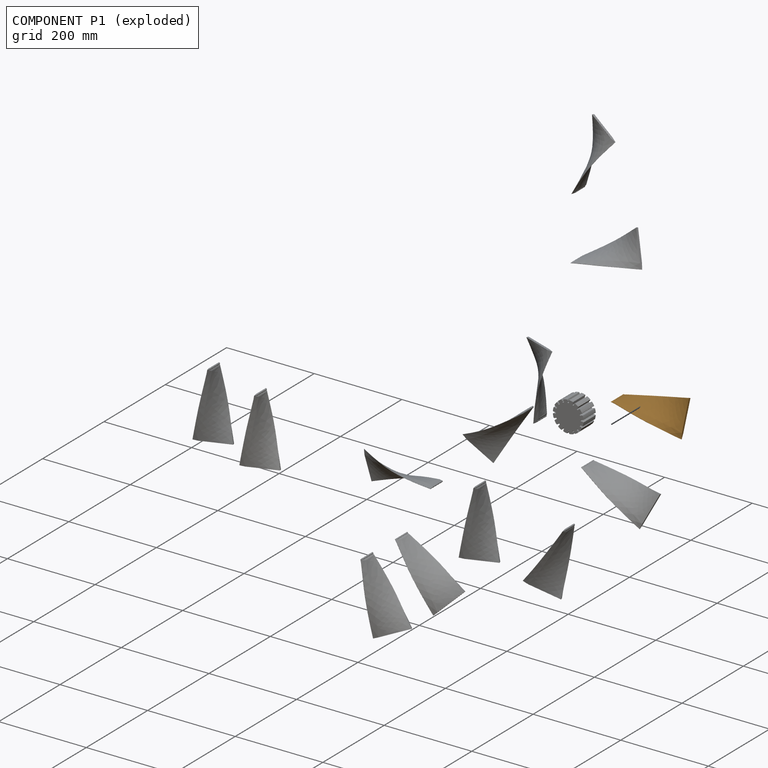
[diagram: component P1 — exploded]
COMPONENT P1 — geometry summary (no construction recipe available for this part):
  bounding box: 170.1 x 79.6 x 63.7 mm
  B-rep topology: 1 solid, 12 faces, 56 edges
  volume: 40781 mm^3 (5% of its bounding box)
Held by: FASTENED mate "Fastened 2" to P0.
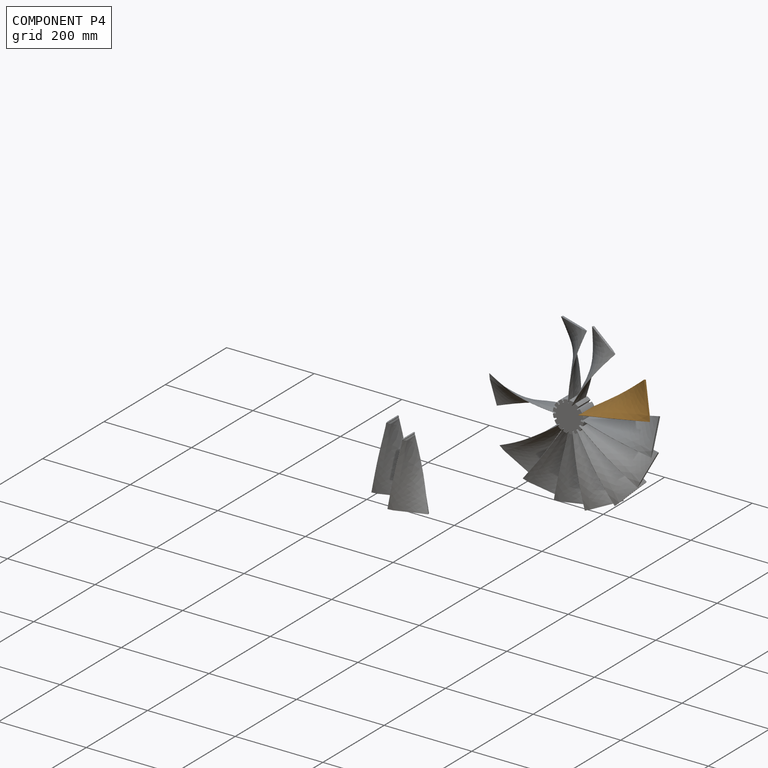
[diagram: component P4 — assembled]
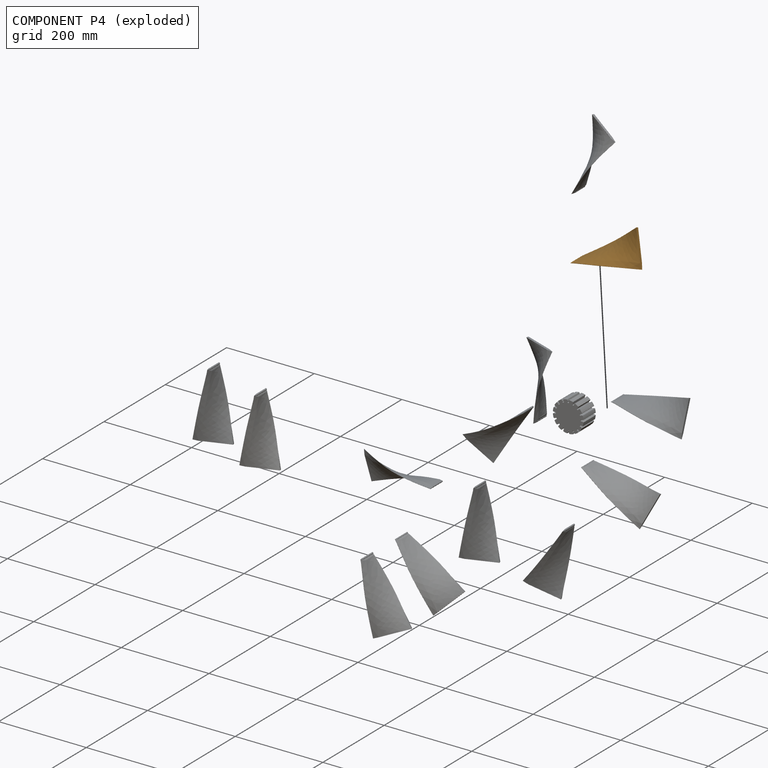
[diagram: component P4 — exploded]
COMPONENT P4 — geometry summary (no construction recipe available for this part):
  bounding box: 170.1 x 79.6 x 63.7 mm
  B-rep topology: 1 solid, 12 faces, 56 edges
  volume: 40781 mm^3 (5% of its bounding box)
Held by: FASTENED mate "Fastened 10" to P0.
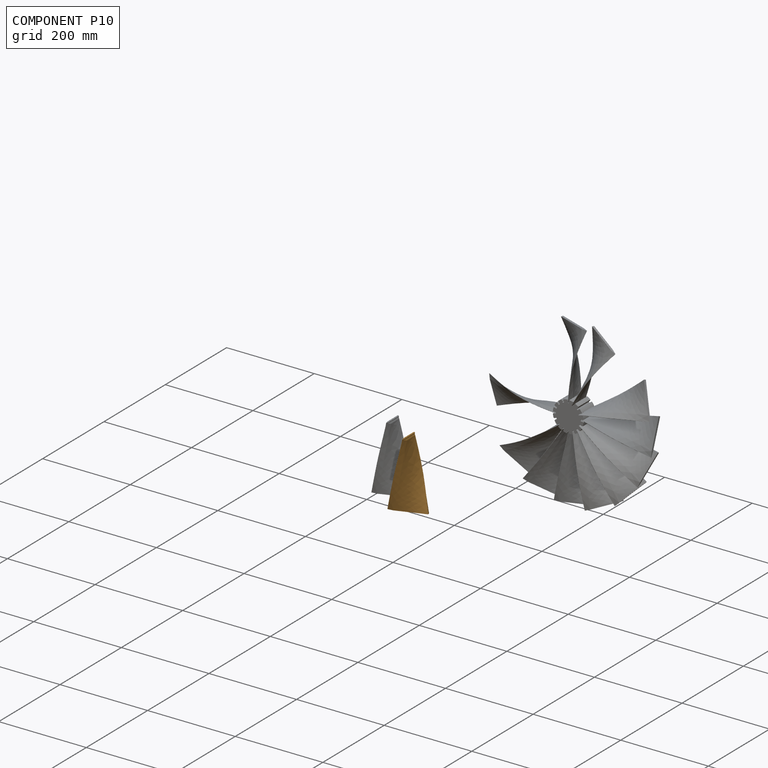
[diagram: component P10 — assembled]
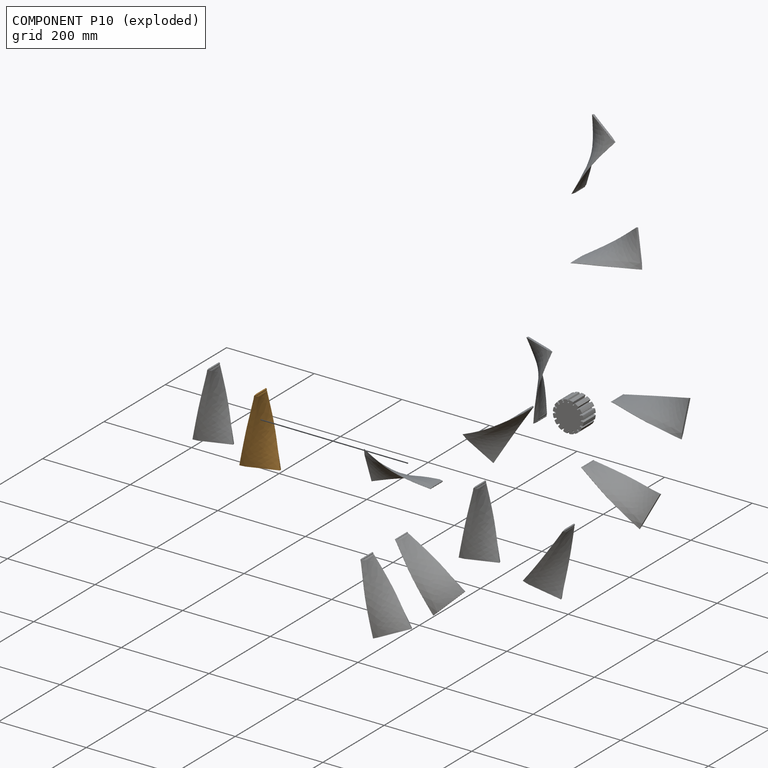
[diagram: component P10 — exploded]
COMPONENT P10 — geometry summary (no construction recipe available for this part):
  bounding box: 170.1 x 79.6 x 63.7 mm
  B-rep topology: 1 solid, 12 faces, 56 edges
  volume: 40781 mm^3 (5% of its bounding box)
Held by: no mates (free).
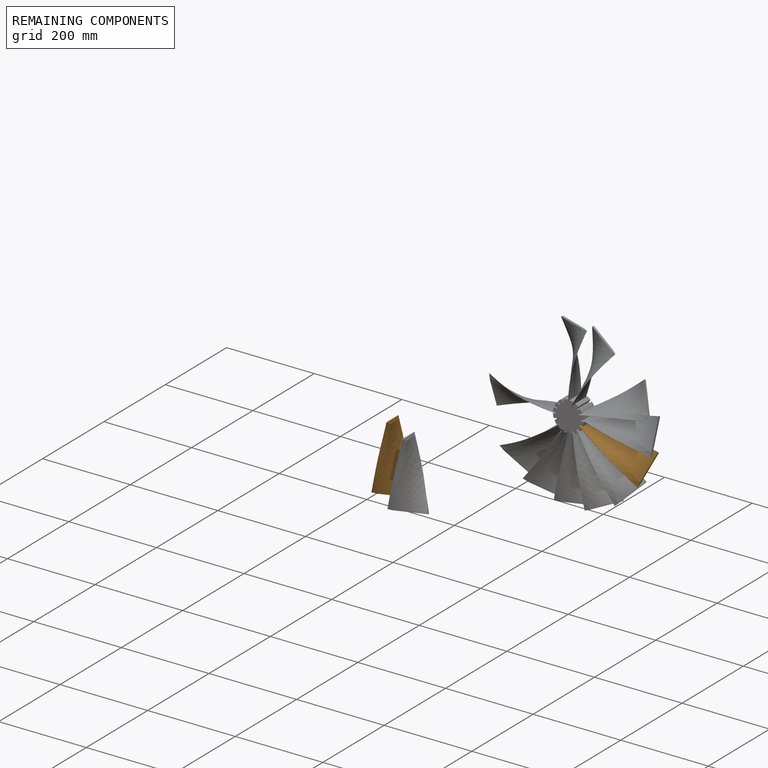
[diagram: remaining components — assembled]
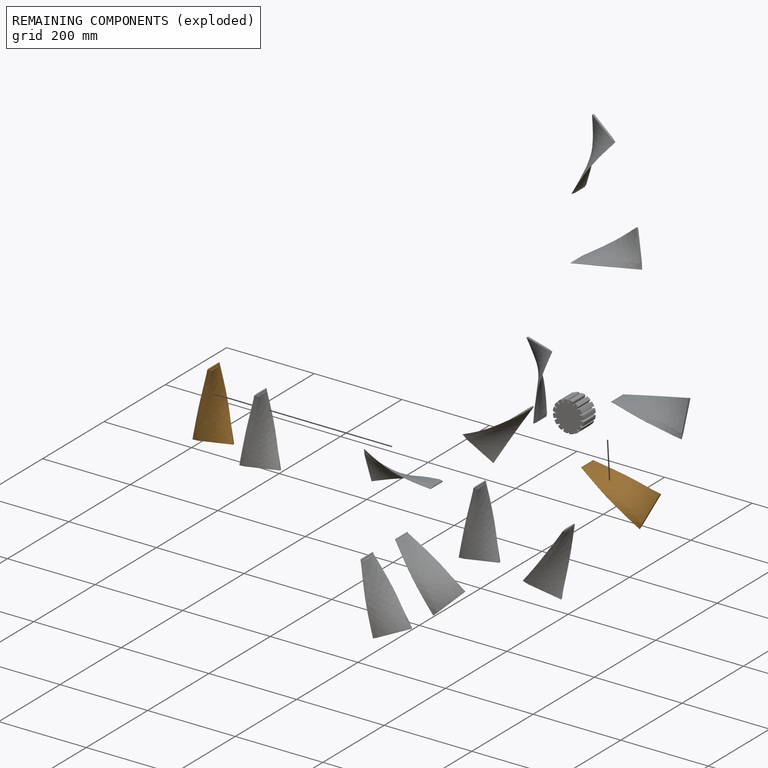
[diagram: remaining components — exploded]
REMAINING COMPONENTS (grouped) — the 2 components below fall outside the per-component tour by the significance rule stated above; both spotlight views highlight the whole group.
  P12: bounding box 170.1 x 79.6 x 63.7 mm, volume 40781 mm^3. Held by: FASTENED mate "Fastened 6" to P0.
  P13: bounding box 170.1 x 79.6 x 63.7 mm, volume 40781 mm^3. Held by: no mates (free).
PROVENANCE & LICENSES
Assembly (occurrences, transforms, mates, per-part STEP geometry): AutoMate dataset, Zenodo record 7776208, CC0.
Construction recipes: CADFS (HuggingFace VladPyatov/CADFS, CC-BY-4.0, layered over the ABC dataset), FeatureScript reconstruction programs keyed by ABC model id.
Join: ABC meta listings map ABC model id -> Onshape documentId; within a shared document, parts are matched by geometric signature (bounding-box dims + volume at 0.1% relative tolerance, exact B-rep face/solid counts).
Verification: 1 of this assembly's 14 components carries a recipe attachment, and every attachment is mesh-verified: the CADFS STEP and the AutoMate member STEP were compared as meshes in their shared local frame (symmetric sampled-point-to-mesh distance); worst across the 1 attachment: below the mesh-comparison resolution (tessellation chordal tolerance ~0.16 mm) on a 107 mm part.
Renders: orthographic iso camera (az 35 / el 25); the floor grid conveys scale (grid pitch printed in each image; no ruler). In the exploded view each component is displaced by its stored offset vector: the offsets alone carry the explosion direction (mate normal/axis signs are not orientation cues and do not encode it), and separation distances are assigned per mate-chain, not proportionally to assembly-order depth.
